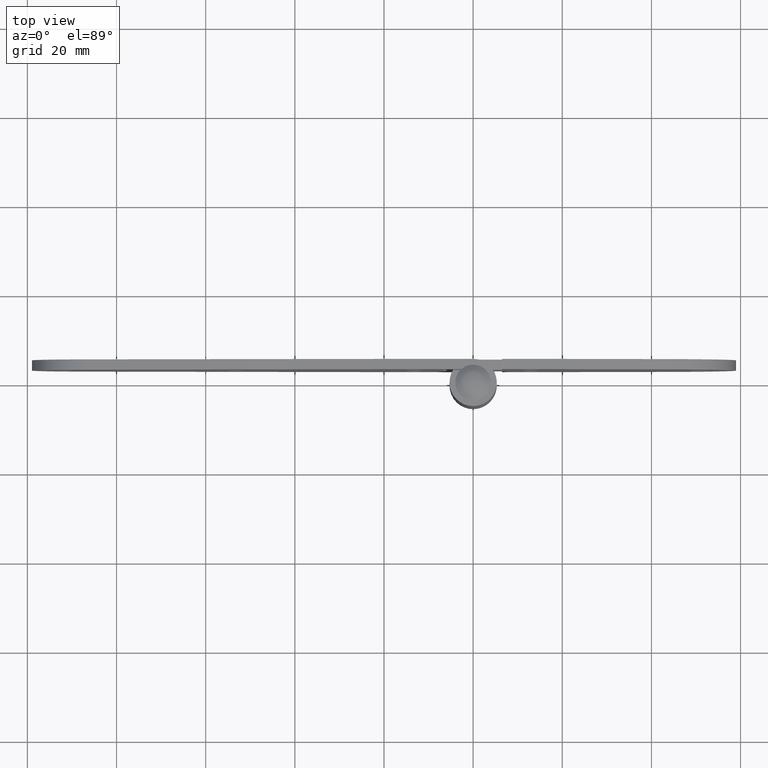
[diagram: clean part render]
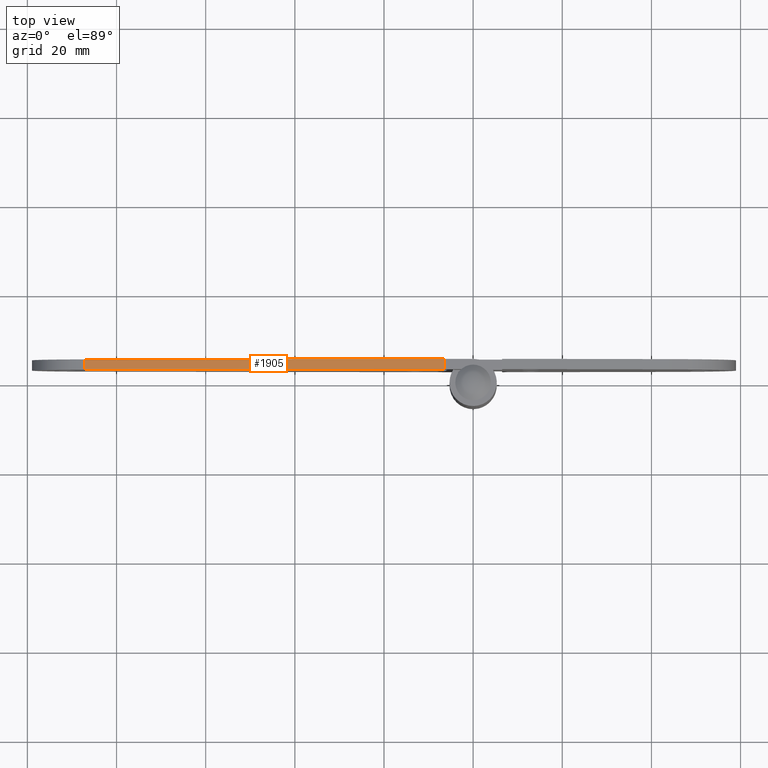
[diagram: same view with one face highlighted and labeled with its STEP entity id]
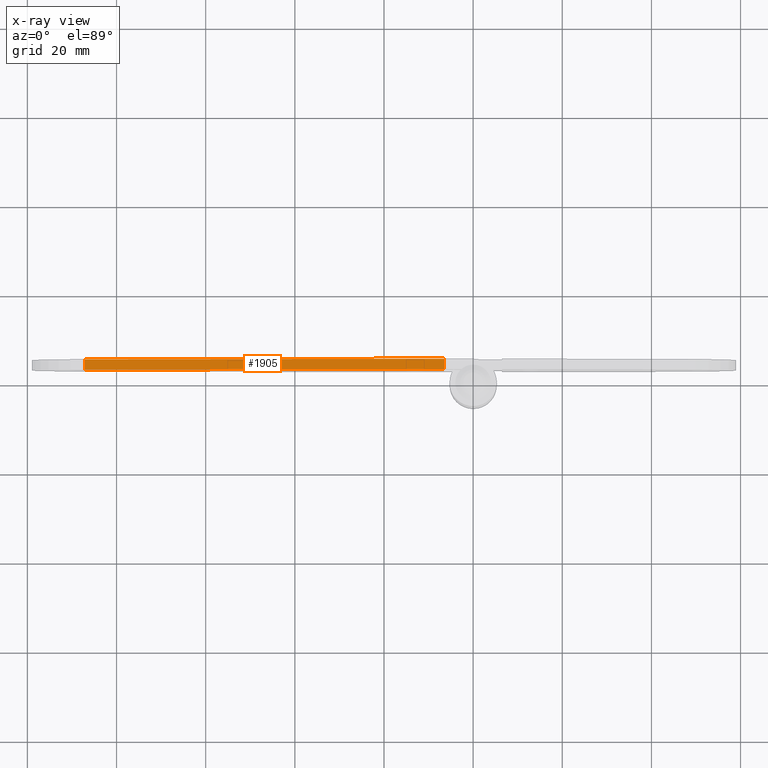
[diagram: x-ray of the same camera — body ghosted, the highlighted face saturated]
A machine part, top view. The second image highlights one B-rep face of the part: STEP entity #1905.
The next image is the same camera in x-ray: the body ghosted, the highlighted face saturated — about 0% of this face is hidden behind the body in this view.
In plain terms, the highlighted face is a freeform B-spline surface patch.
Its self-contained STEP definition (entity closure, byte-faithful):
#1870=CARTESIAN_POINT('',(-2.472420117930909,2.885109849451674,40.352117166686902));
#1871=CARTESIAN_POINT('',(-91.159815044794144,2.885109849451674,32.598489644233837));
#1872=CARTESIAN_POINT('',(-2.472420117930909,5.414882862657661,40.352117166686902));
#1873=CARTESIAN_POINT('',(-91.159815044794144,5.414882862657661,32.598489644233837));
#1874=B_SPLINE_SURFACE_WITH_KNOTS('',1,1,((#1870,#1872),(#1871,#1873)),.UNSPECIFIED.,.F.,.F.,.U.,(2,2),(2,2),(0.0,89.025685948889759),(0.0,2.529773013205987),.UNSPECIFIED.);
#1875=CARTESIAN_POINT('',(-6.500000000000000,5.299998000000000,40.0));
#1876=VERTEX_POINT('',#1875);
#1877=CARTESIAN_POINT('',(-87.132232999999999,5.299998000000000,32.950606999999998));
#1878=VERTEX_POINT('',#1877);
#1879=CARTESIAN_POINT('',(-6.500000000000000,5.299998000000000,40.0));
#1880=CARTESIAN_POINT('',(-87.132232999999999,5.299998000000000,32.950606999999998));
#1881=QUASI_UNIFORM_CURVE('',1,(#1879,#1880),.UNSPECIFIED.,.F.,.U.);
#1882=EDGE_CURVE('',#1876,#1878,#1881,.T.);
#1883=ORIENTED_EDGE('',*,*,#1882,.T.);
#1884=CARTESIAN_POINT('',(-87.132232999999999,2.999995000000145,32.950606999999998));
#1885=VERTEX_POINT('',#1884);
#1886=CARTESIAN_POINT('',(-87.132232999999999,2.999995000000145,32.950606999999998));
#1887=CARTESIAN_POINT('',(-87.132232999999999,5.299998000000000,32.950606999999998));
#1888=QUASI_UNIFORM_CURVE('',1,(#1886,#1887),.UNSPECIFIED.,.F.,.U.);
#1889=EDGE_CURVE('',#1885,#1878,#1888,.T.);
#1890=ORIENTED_EDGE('',*,*,#1889,.F.);
#1891=CARTESIAN_POINT('',(-6.500000000000000,2.999995000000145,40.0));
#1892=VERTEX_POINT('',#1891);
#1893=CARTESIAN_POINT('',(-6.500000000000000,2.999995000000145,40.0));
#1894=CARTESIAN_POINT('',(-87.132232999999999,2.999995000000145,32.950606999999998));
#1895=QUASI_UNIFORM_CURVE('',1,(#1893,#1894),.UNSPECIFIED.,.F.,.U.);
#1896=EDGE_CURVE('',#1892,#1885,#1895,.T.);
#1897=ORIENTED_EDGE('',*,*,#1896,.F.);
#1898=CARTESIAN_POINT('',(-6.500000000000000,2.999995000000145,40.0));
#1899=CARTESIAN_POINT('',(-6.500000000000000,5.299998000000000,40.0));
#1900=QUASI_UNIFORM_CURVE('',1,(#1898,#1899),.UNSPECIFIED.,.F.,.U.);
#1901=EDGE_CURVE('',#1892,#1876,#1900,.T.);
#1902=ORIENTED_EDGE('',*,*,#1901,.T.);
#1903=EDGE_LOOP('',(#1883,#1890,#1897,#1902));
#1904=FACE_OUTER_BOUND('',#1903,.T.);
#1905=ADVANCED_FACE('',(#1904),#1874,.F.);